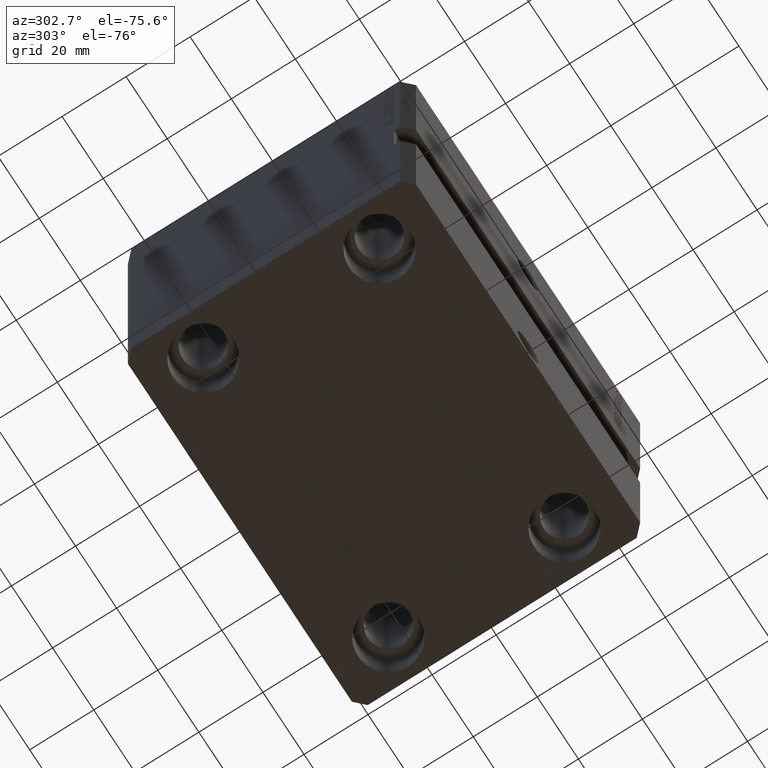
[diagram: clean part render]
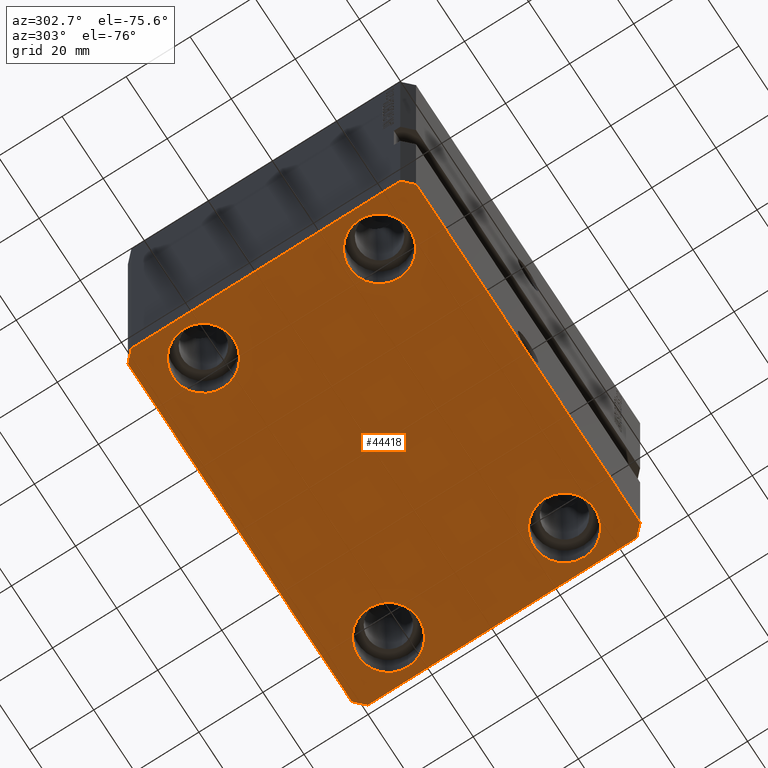
[diagram: same view with one face highlighted and labeled with its STEP entity id]
A machine part, auxiliary view. The second image highlights one B-rep face of the part: STEP entity #44418.
In plain terms, the highlighted planar face has unit normal (0, 0, 1).
Its self-contained STEP definition (entity closure, byte-faithful):
#19 = DIRECTION ( 'NONE',  ( 0.7071067811865483499, 0.7071067811865466846, 0.000000000000000000 ) ) ;
#83 = LINE ( 'NONE', #10792, #7898 ) ;
#130 = VECTOR ( 'NONE', #29431, 1000.000000000000000 ) ;
#246 = EDGE_CURVE ( 'NONE', #12138, #22577, #29213, .T. ) ;
#321 = ORIENTED_EDGE ( 'NONE', *, *, #25161, .F. ) ;
#325 = AXIS2_PLACEMENT_3D ( 'NONE', #4531, #18502, #32644 ) ;
#792 = DIRECTION ( 'NONE',  ( -0.000000000000000000, -0.000000000000000000, 1.000000000000000000 ) ) ;
#1318 = VECTOR ( 'NONE', #5621, 1000.000000000000000 ) ;
#2108 = DIRECTION ( 'NONE',  ( -0.000000000000000000, -0.000000000000000000, 1.000000000000000000 ) ) ;
#2693 = ORIENTED_EDGE ( 'NONE', *, *, #27778, .F. ) ;
#3135 = DIRECTION ( 'NONE',  ( -2.478176394252581141E-16, -1.000000000000000000, 0.000000000000000000 ) ) ;
#4016 = EDGE_LOOP ( 'NONE', ( #41189, #34043, #321, #2693, #7120, #30413, #27173, #32349 ) ) ;
#4531 = CARTESIAN_POINT ( 'NONE',  ( -45.00000000000000000, 27.50000000000000355, -105.0000000000000000 ) ) ;
#4760 = FACE_BOUND ( 'NONE', #5478, .T. ) ;
#5049 = EDGE_CURVE ( 'NONE', #34393, #20078, #17512, .T. ) ;
#5407 = CARTESIAN_POINT ( 'NONE',  ( 45.00000000000000000, 27.50000000000001776, -105.0000000000000000 ) ) ;
#5457 = CARTESIAN_POINT ( 'NONE',  ( -45.00000000000000000, 27.50000000000000355, -105.0000000000000000 ) ) ;
#5478 = EDGE_LOOP ( 'NONE', ( #11863, #31221 ) ) ;
#5621 = DIRECTION ( 'NONE',  ( 1.000000000000000000, 1.273191542001326317E-16, 0.000000000000000000 ) ) ;
#5862 = CARTESIAN_POINT ( 'NONE',  ( 45.00000000000000000, -27.49999999999999645, -105.0000000000000000 ) ) ;
#5989 = AXIS2_PLACEMENT_3D ( 'NONE', #23871, #6660, #44994 ) ;
#6411 = VERTEX_POINT ( 'NONE', #24362 ) ;
#6660 = DIRECTION ( 'NONE',  ( -0.000000000000000000, -0.000000000000000000, 1.000000000000000000 ) ) ;
#6828 = VECTOR ( 'NONE', #45225, 1000.000000000000000 ) ;
#7120 = ORIENTED_EDGE ( 'NONE', *, *, #15869, .F. ) ;
#7898 = VECTOR ( 'NONE', #35388, 1000.000000000000114 ) ;
#8175 = ORIENTED_EDGE ( 'NONE', *, *, #28816, .T. ) ;
#8486 = CARTESIAN_POINT ( 'NONE',  ( -54.50000000000000711, -45.00000000000000000, -105.0000000000000000 ) ) ;
#8507 = CARTESIAN_POINT ( 'NONE',  ( 54.50000000000000000, 27.50000000000001776, -105.0000000000000000 ) ) ;
#8562 = CARTESIAN_POINT ( 'NONE',  ( -57.50000000000000711, -42.00000000000000711, -105.0000000000000000 ) ) ;
#8733 = DIRECTION ( 'NONE',  ( -0.000000000000000000, -0.000000000000000000, 1.000000000000000000 ) ) ;
#8864 = VECTOR ( 'NONE', #36891, 1000.000000000000000 ) ;
#9183 = CARTESIAN_POINT ( 'NONE',  ( 54.50000000000000000, -27.49999999999999645, -105.0000000000000000 ) ) ;
#9474 = LINE ( 'NONE', #27815, #6828 ) ;
#10025 = CARTESIAN_POINT ( 'NONE',  ( 45.00000000000000000, 27.50000000000001776, -105.0000000000000000 ) ) ;
#10081 = AXIS2_PLACEMENT_3D ( 'NONE', #39839, #15236, #29166 ) ;
#10291 = ORIENTED_EDGE ( 'NONE', *, *, #45300, .T. ) ;
#10792 = CARTESIAN_POINT ( 'NONE',  ( -57.50000000000000711, -42.00000000000000711, -105.0000000000000000 ) ) ;
#10822 = EDGE_CURVE ( 'NONE', #18935, #44503, #83, .T. ) ;
#11264 = LINE ( 'NONE', #32152, #25896 ) ;
#11527 = FACE_OUTER_BOUND ( 'NONE', #4016, .T. ) ;
#11863 = ORIENTED_EDGE ( 'NONE', *, *, #5049, .T. ) ;
#11871 = CARTESIAN_POINT ( 'NONE',  ( 35.50000000000000000, -27.49999999999999645, -105.0000000000000000 ) ) ;
#12138 = VERTEX_POINT ( 'NONE', #9183 ) ;
#12168 = CARTESIAN_POINT ( 'NONE',  ( -54.50000000000000000, 27.50000000000000355, -105.0000000000000000 ) ) ;
#12335 = AXIS2_PLACEMENT_3D ( 'NONE', #5457, #8733, #19415 ) ;
#12629 = CARTESIAN_POINT ( 'NONE',  ( 57.50000000000000711, -41.99999999999998579, -105.0000000000000000 ) ) ;
#12719 = ORIENTED_EDGE ( 'NONE', *, *, #26226, .T. ) ;
#13362 = LINE ( 'NONE', #41207, #45099 ) ;
#15236 = DIRECTION ( 'NONE',  ( 0.000000000000000000, 0.000000000000000000, 1.000000000000000000 ) ) ;
#15321 = LINE ( 'NONE', #25999, #8864 ) ;
#15557 = EDGE_CURVE ( 'NONE', #6411, #15767, #13362, .T. ) ;
#15767 = VERTEX_POINT ( 'NONE', #40924 ) ;
#15869 = EDGE_CURVE ( 'NONE', #44503, #39706, #21139, .T. ) ;
#16115 = CARTESIAN_POINT ( 'NONE',  ( 35.50000000000000000, 27.50000000000001776, -105.0000000000000000 ) ) ;
#16337 = DIRECTION ( 'NONE',  ( -0.000000000000000000, -0.000000000000000000, 1.000000000000000000 ) ) ;
#17164 = VECTOR ( 'NONE', #19, 1000.000000000000000 ) ;
#17512 = CIRCLE ( 'NONE', #43542, 9.500000000000001776 ) ;
#17698 = DIRECTION ( 'NONE',  ( 1.000000000000000000, 0.000000000000000000, 0.000000000000000000 ) ) ;
#18110 = DIRECTION ( 'NONE',  ( 1.000000000000000000, 0.000000000000000000, 0.000000000000000000 ) ) ;
#18284 = EDGE_CURVE ( 'NONE', #42460, #18935, #11264, .T. ) ;
#18502 = DIRECTION ( 'NONE',  ( -0.000000000000000000, -0.000000000000000000, 1.000000000000000000 ) ) ;
#18788 = CARTESIAN_POINT ( 'NONE',  ( 54.50000000000000711, -44.99999999999998579, -105.0000000000000000 ) ) ;
#18935 = VERTEX_POINT ( 'NONE', #8562 ) ;
#18949 = FACE_BOUND ( 'NONE', #39631, .T. ) ;
#19072 = VERTEX_POINT ( 'NONE', #12168 ) ;
#19415 = DIRECTION ( 'NONE',  ( 1.000000000000000000, 0.000000000000000000, 0.000000000000000000 ) ) ;
#19457 = CARTESIAN_POINT ( 'NONE',  ( -54.49999999999999289, 45.00000000000000000, -105.0000000000000000 ) ) ;
#19768 = EDGE_CURVE ( 'NONE', #27967, #42460, #15321, .T. ) ;
#20078 = VERTEX_POINT ( 'NONE', #8507 ) ;
#20326 = DIRECTION ( 'NONE',  ( -0.7071067811865376918, 0.7071067811865574537, 0.000000000000000000 ) ) ;
#20405 = ORIENTED_EDGE ( 'NONE', *, *, #246, .T. ) ;
#21139 = LINE ( 'NONE', #45742, #1318 ) ;
#22577 = VERTEX_POINT ( 'NONE', #11871 ) ;
#22745 = VERTEX_POINT ( 'NONE', #31353 ) ;
#23871 = CARTESIAN_POINT ( 'NONE',  ( -45.00000000000000000, -27.49999999999999645, -105.0000000000000000 ) ) ;
#24083 = CIRCLE ( 'NONE', #325, 9.500000000000001776 ) ;
#24362 = CARTESIAN_POINT ( 'NONE',  ( 57.50000000000055422, 41.99999999999997868, -105.0000000000000000 ) ) ;
#24613 = CIRCLE ( 'NONE', #26089, 9.500000000000001776 ) ;
#25161 = EDGE_CURVE ( 'NONE', #40382, #6411, #36614, .T. ) ;
#25654 = CIRCLE ( 'NONE', #12335, 9.500000000000001776 ) ;
#25896 = VECTOR ( 'NONE', #3135, 1000.000000000000000 ) ;
#25999 = CARTESIAN_POINT ( 'NONE',  ( -54.49999999999999289, 45.00000000000000000, -105.0000000000000000 ) ) ;
#26089 = AXIS2_PLACEMENT_3D ( 'NONE', #32032, #35734, #18110 ) ;
#26145 = EDGE_CURVE ( 'NONE', #15767, #27967, #9474, .T. ) ;
#26226 = EDGE_CURVE ( 'NONE', #44969, #28987, #37114, .T. ) ;
#26571 = CARTESIAN_POINT ( 'NONE',  ( -57.49999999999998579, 42.00000000000000711, -105.0000000000000000 ) ) ;
#27173 = ORIENTED_EDGE ( 'NONE', *, *, #18284, .F. ) ;
#27778 = EDGE_CURVE ( 'NONE', #39706, #40382, #32072, .T. ) ;
#27815 = CARTESIAN_POINT ( 'NONE',  ( 54.50000000000058975, 45.00000000000002842, -105.0000000000000000 ) ) ;
#27967 = VERTEX_POINT ( 'NONE', #19457 ) ;
#28816 = EDGE_CURVE ( 'NONE', #22577, #12138, #24613, .T. ) ;
#28987 = VERTEX_POINT ( 'NONE', #29902 ) ;
#29166 = DIRECTION ( 'NONE',  ( 1.000000000000000000, 0.000000000000000000, -0.000000000000000000 ) ) ;
#29213 = CIRCLE ( 'NONE', #40340, 9.500000000000001776 ) ;
#29431 = DIRECTION ( 'NONE',  ( 6.443258625056715108E-15, 1.000000000000000000, 0.000000000000000000 ) ) ;
#29483 = EDGE_CURVE ( 'NONE', #28987, #44969, #43155, .T. ) ;
#29658 = CARTESIAN_POINT ( 'NONE',  ( 57.50000000000000711, -41.99999999999998579, -105.0000000000000000 ) ) ;
#29815 = AXIS2_PLACEMENT_3D ( 'NONE', #31840, #35765, #17698 ) ;
#29902 = CARTESIAN_POINT ( 'NONE',  ( -54.50000000000000000, -27.49999999999999645, -105.0000000000000000 ) ) ;
#30413 = ORIENTED_EDGE ( 'NONE', *, *, #10822, .F. ) ;
#30681 = EDGE_CURVE ( 'NONE', #20078, #34393, #38021, .T. ) ;
#31148 = DIRECTION ( 'NONE',  ( 1.000000000000000000, 0.000000000000000000, 0.000000000000000000 ) ) ;
#31221 = ORIENTED_EDGE ( 'NONE', *, *, #30681, .T. ) ;
#31353 = CARTESIAN_POINT ( 'NONE',  ( -35.50000000000000000, 27.50000000000000355, -105.0000000000000000 ) ) ;
#31840 = CARTESIAN_POINT ( 'NONE',  ( -45.00000000000000000, -27.49999999999999645, -105.0000000000000000 ) ) ;
#32032 = CARTESIAN_POINT ( 'NONE',  ( 45.00000000000000000, -27.49999999999999645, -105.0000000000000000 ) ) ;
#32072 = LINE ( 'NONE', #40576, #17164 ) ;
#32152 = CARTESIAN_POINT ( 'NONE',  ( -57.49999999999998579, 42.00000000000000711, -105.0000000000000000 ) ) ;
#32198 = FACE_BOUND ( 'NONE', #40085, .T. ) ;
#32349 = ORIENTED_EDGE ( 'NONE', *, *, #19768, .F. ) ;
#32644 = DIRECTION ( 'NONE',  ( 1.000000000000000000, 0.000000000000000000, 0.000000000000000000 ) ) ;
#34043 = ORIENTED_EDGE ( 'NONE', *, *, #15557, .F. ) ;
#34393 = VERTEX_POINT ( 'NONE', #16115 ) ;
#34889 = DIRECTION ( 'NONE',  ( 1.000000000000000000, 0.000000000000000000, 0.000000000000000000 ) ) ;
#35335 = ORIENTED_EDGE ( 'NONE', *, *, #29483, .T. ) ;
#35388 = DIRECTION ( 'NONE',  ( 0.7071067811865491270, -0.7071067811865459074, 0.000000000000000000 ) ) ;
#35734 = DIRECTION ( 'NONE',  ( -0.000000000000000000, -0.000000000000000000, 1.000000000000000000 ) ) ;
#35765 = DIRECTION ( 'NONE',  ( -0.000000000000000000, -0.000000000000000000, 1.000000000000000000 ) ) ;
#36614 = LINE ( 'NONE', #29658, #130 ) ;
#36891 = DIRECTION ( 'NONE',  ( -0.7071067811865483499, -0.7071067811865466846, 0.000000000000000000 ) ) ;
#37040 = EDGE_CURVE ( 'NONE', #22745, #19072, #24083, .T. ) ;
#37114 = CIRCLE ( 'NONE', #5989, 9.500000000000001776 ) ;
#38021 = CIRCLE ( 'NONE', #43187, 9.500000000000001776 ) ;
#38465 = ORIENTED_EDGE ( 'NONE', *, *, #37040, .T. ) ;
#39392 = PLANE ( 'NONE',  #10081 ) ;
#39631 = EDGE_LOOP ( 'NONE', ( #10291, #38465 ) ) ;
#39706 = VERTEX_POINT ( 'NONE', #18788 ) ;
#39839 = CARTESIAN_POINT ( 'NONE',  ( 0.000000000000000000, 0.000000000000000000, -105.0000000000000000 ) ) ;
#40085 = EDGE_LOOP ( 'NONE', ( #8175, #20405 ) ) ;
#40093 = EDGE_LOOP ( 'NONE', ( #35335, #12719 ) ) ;
#40121 = CARTESIAN_POINT ( 'NONE',  ( -35.50000000000000000, -27.49999999999999645, -105.0000000000000000 ) ) ;
#40340 = AXIS2_PLACEMENT_3D ( 'NONE', #5862, #16337, #34889 ) ;
#40382 = VERTEX_POINT ( 'NONE', #12629 ) ;
#40576 = CARTESIAN_POINT ( 'NONE',  ( 54.50000000000000711, -44.99999999999998579, -105.0000000000000000 ) ) ;
#40924 = CARTESIAN_POINT ( 'NONE',  ( 54.50000000000058975, 45.00000000000002842, -105.0000000000000000 ) ) ;
#41189 = ORIENTED_EDGE ( 'NONE', *, *, #26145, .F. ) ;
#41207 = CARTESIAN_POINT ( 'NONE',  ( 57.50000000000055422, 41.99999999999997868, -105.0000000000000000 ) ) ;
#42460 = VERTEX_POINT ( 'NONE', #26571 ) ;
#43155 = CIRCLE ( 'NONE', #29815, 9.500000000000001776 ) ;
#43187 = AXIS2_PLACEMENT_3D ( 'NONE', #10025, #2108, #31148 ) ;
#43285 = DIRECTION ( 'NONE',  ( 1.000000000000000000, 0.000000000000000000, 0.000000000000000000 ) ) ;
#43326 = FACE_BOUND ( 'NONE', #40093, .T. ) ;
#43542 = AXIS2_PLACEMENT_3D ( 'NONE', #5407, #792, #43285 ) ;
#44418 = ADVANCED_FACE ( 'NONE', ( #43326, #32198, #4760, #18949, #11527 ), #39392, .F. ) ;
#44503 = VERTEX_POINT ( 'NONE', #8486 ) ;
#44969 = VERTEX_POINT ( 'NONE', #40121 ) ;
#44994 = DIRECTION ( 'NONE',  ( 1.000000000000000000, 0.000000000000000000, 0.000000000000000000 ) ) ;
#45099 = VECTOR ( 'NONE', #20326, 999.9999999999998863 ) ;
#45225 = DIRECTION ( 'NONE',  ( -1.000000000000000000, -2.546383084002639322E-16, 0.000000000000000000 ) ) ;
#45300 = EDGE_CURVE ( 'NONE', #19072, #22745, #25654, .T. ) ;
#45742 = CARTESIAN_POINT ( 'NONE',  ( -54.50000000000000711, -45.00000000000000000, -105.0000000000000000 ) ) ;